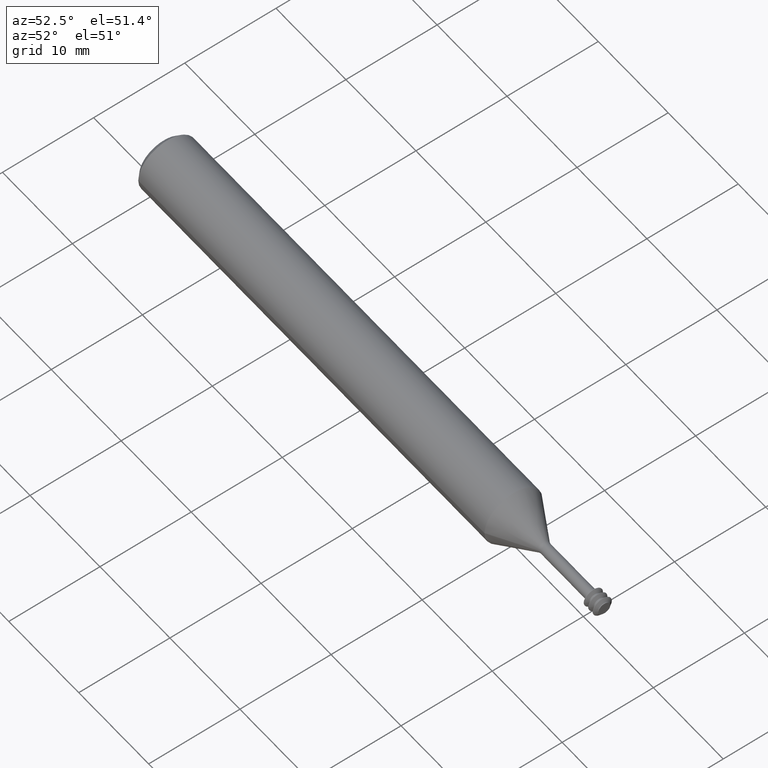
[diagram: clean part render]
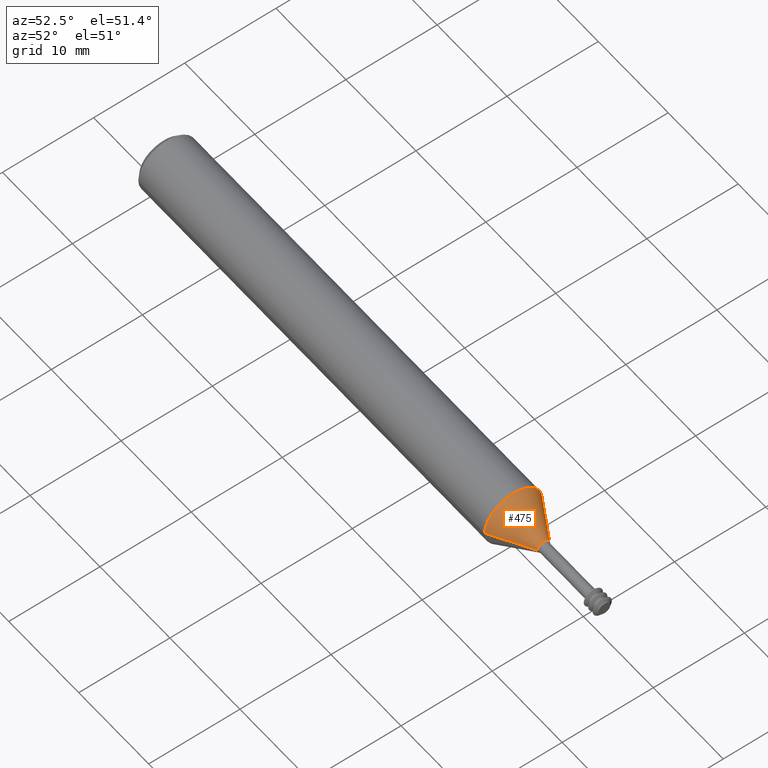
[diagram: same view with one face highlighted and labeled with its STEP entity id]
A machine part, auxiliary view. The second image highlights one B-rep face of the part: STEP entity #475.
In plain terms, the highlighted conical surface has half-angle 30 deg.
Its self-contained STEP definition (entity closure, byte-faithful):
#13 = AXIS2_PLACEMENT_3D ( 'NONE', #320, #331, #220 ) ;
#35 = CIRCLE ( 'NONE', #340, 0.02684936490538899698 ) ;
#38 = EDGE_CURVE ( 'NONE', #387, #124, #35, .T. ) ;
#42 = EDGE_CURVE ( 'NONE', #124, #976, #300, .T. ) ;
#54 = ORIENTED_EDGE ( 'NONE', *, *, #42, .T. ) ;
#83 = CARTESIAN_POINT ( 'NONE',  ( 2.138500000000000068, -0.02684936490538899351, 0.000000000000000000 ) ) ;
#122 = EDGE_CURVE ( 'NONE', #405, #976, #235, .T. ) ;
#124 = VERTEX_POINT ( 'NONE', #490 ) ;
#203 = CARTESIAN_POINT ( 'NONE',  ( 2.138500000000000068, 0.02684936490538900045, 3.288098879052391398E-18 ) ) ;
#220 = DIRECTION ( 'NONE',  ( 0.000000000000000000, -1.000000000000000000, 0.000000000000000000 ) ) ;
#235 = CIRCLE ( 'NONE', #13, 0.1248500000000000026 ) ;
#245 = CARTESIAN_POINT ( 'NONE',  ( 2.138500000000000068, 4.682433728428207884E-18, 0.000000000000000000 ) ) ;
#251 = VECTOR ( 'NONE', #550, 39.37007874015748143 ) ;
#300 = LINE ( 'NONE', #203, #251 ) ;
#320 = CARTESIAN_POINT ( 'NONE',  ( 1.968757920842117537, 5.244742617304212452E-18, 0.000000000000000000 ) ) ;
#331 = DIRECTION ( 'NONE',  ( -1.000000000000000000, 3.312725351696573770E-18, -0.000000000000000000 ) ) ;
#340 = AXIS2_PLACEMENT_3D ( 'NONE', #783, #777, #1032 ) ;
#387 = VERTEX_POINT ( 'NONE', #83 ) ;
#405 = VERTEX_POINT ( 'NONE', #903 ) ;
#427 = FACE_OUTER_BOUND ( 'NONE', #1028, .T. ) ;
#457 = EDGE_CURVE ( 'NONE', #387, #405, #668, .T. ) ;
#475 = ADVANCED_FACE ( 'NONE', ( #427 ), #1056, .T. ) ;
#490 = CARTESIAN_POINT ( 'NONE',  ( 2.138500000000000068, 0.02684936490538900045, 9.288907083203547422E-18 ) ) ;
#498 = DIRECTION ( 'NONE',  ( -1.000000000000000000, 3.312725351696573770E-18, -0.000000000000000000 ) ) ;
#548 = AXIS2_PLACEMENT_3D ( 'NONE', #245, #498, #742 ) ;
#550 = DIRECTION ( 'NONE',  ( -0.8660254037844368202, 0.5000000000000031086, 6.123233995736804246E-17 ) ) ;
#586 = CARTESIAN_POINT ( 'NONE',  ( 2.138500000000000068, -0.02684936490538899351, 0.000000000000000000 ) ) ;
#644 = CARTESIAN_POINT ( 'NONE',  ( 1.968757920842117537, 0.1248500000000000026, 1.528971528735470422E-17 ) ) ;
#649 = ORIENTED_EDGE ( 'NONE', *, *, #457, .F. ) ;
#668 = LINE ( 'NONE', #586, #1005 ) ;
#742 = DIRECTION ( 'NONE',  ( 0.000000000000000000, -1.000000000000000000, 0.000000000000000000 ) ) ;
#777 = DIRECTION ( 'NONE',  ( -1.000000000000000000, 3.312725351696573770E-18, -0.000000000000000000 ) ) ;
#782 = ORIENTED_EDGE ( 'NONE', *, *, #38, .T. ) ;
#783 = CARTESIAN_POINT ( 'NONE',  ( 2.138500000000000068, 4.682433728428207884E-18, 0.000000000000000000 ) ) ;
#822 = DIRECTION ( 'NONE',  ( -0.8660254037844368202, -0.5000000000000031086, 0.000000000000000000 ) ) ;
#903 = CARTESIAN_POINT ( 'NONE',  ( 1.968757920842117537, -0.1248500000000000026, 0.000000000000000000 ) ) ;
#976 = VERTEX_POINT ( 'NONE', #644 ) ;
#1005 = VECTOR ( 'NONE', #822, 39.37007874015748143 ) ;
#1027 = ORIENTED_EDGE ( 'NONE', *, *, #122, .F. ) ;
#1028 = EDGE_LOOP ( 'NONE', ( #782, #54, #1027, #649 ) ) ;
#1032 = DIRECTION ( 'NONE',  ( 0.000000000000000000, -1.000000000000000000, 0.000000000000000000 ) ) ;
#1056 = CONICAL_SURFACE ( 'NONE', #548, 0.02684936490538899698, 0.5235987755983024794 ) ;